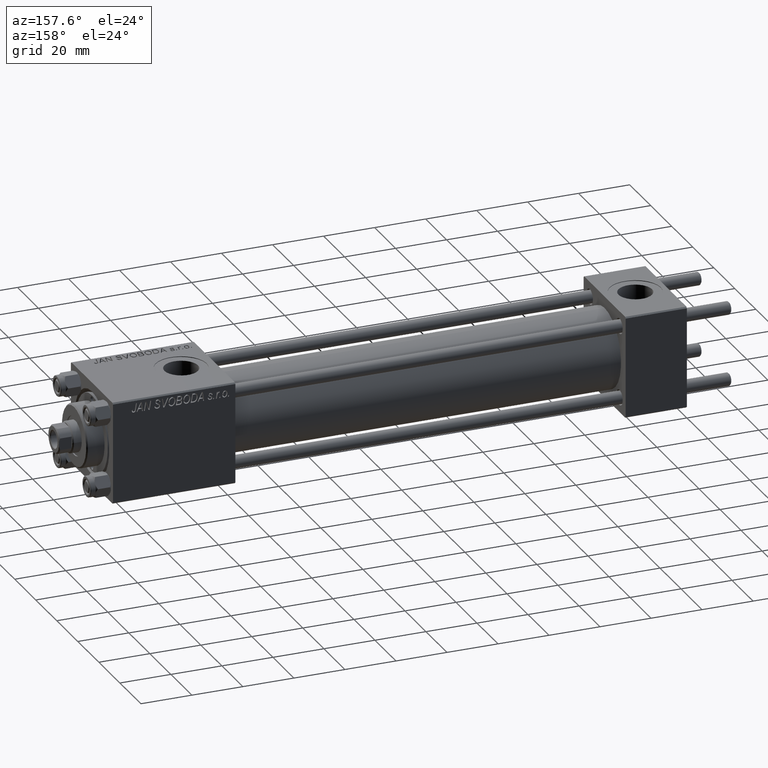
[diagram: clean part render]
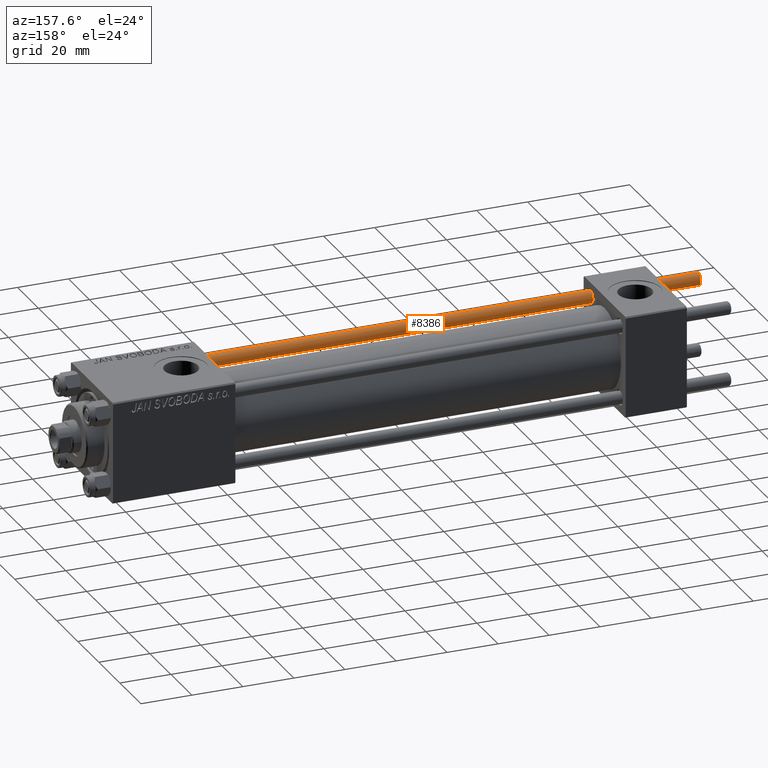
[diagram: same view with one face highlighted and labeled with its STEP entity id]
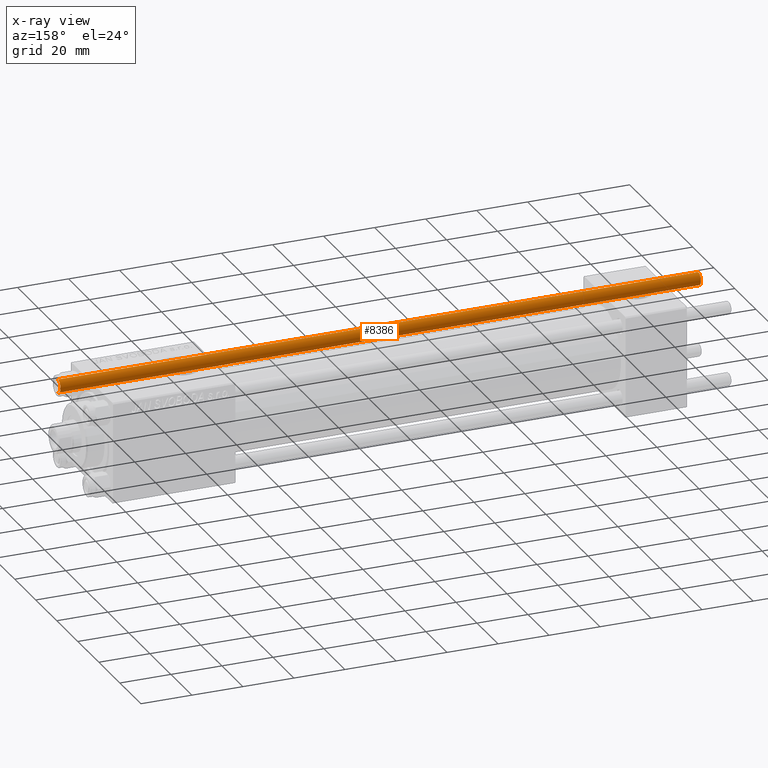
[diagram: x-ray of the same camera — body ghosted, the highlighted face saturated]
A machine part, auxiliary view. The second image highlights one B-rep face of the part: STEP entity #8386.
The next image is the same camera in x-ray: the body ghosted, the highlighted face saturated — about 0% of this face is hidden behind the body in this view.
In plain terms, the highlighted cylindrical surface (edge-blend (fillet) strip) has radius 2.5 mm, axis along (1, -0, 0).
Its self-contained STEP definition (entity closure, byte-faithful):
#1679 = VERTEX_POINT ( 'NONE', #21710 ) ;
#2681 = VERTEX_POINT ( 'NONE', #17995 ) ;
#2816 = VERTEX_POINT ( 'NONE', #22513 ) ;
#8004 = DIRECTION ( 'NONE',  ( 0.000000000000000000, 0.000000000000000000, -1.000000000000000000 ) ) ;
#8386 = ADVANCED_FACE ( 'NONE', ( #27118 ), #23844, .T. ) ;
#9774 = VECTOR ( 'NONE', #37578, 1000.000000000000000 ) ;
#9916 = VERTEX_POINT ( 'NONE', #24308 ) ;
#11194 = AXIS2_PLACEMENT_3D ( 'NONE', #42514, #43024, #16030 ) ;
#11543 = CARTESIAN_POINT ( 'NONE',  ( 0.000000000000000000, 0.000000000000000000, 251.5000000000000000 ) ) ;
#12187 = AXIS2_PLACEMENT_3D ( 'NONE', #32795, #40372, #28261 ) ;
#14670 = DIRECTION ( 'NONE',  ( -0.000000000000000000, -0.000000000000000000, -1.000000000000000000 ) ) ;
#14889 = EDGE_CURVE ( 'NONE', #2681, #1679, #41352, .T. ) ;
#16030 = DIRECTION ( 'NONE',  ( -1.000000000000000000, 0.000000000000000000, 0.000000000000000000 ) ) ;
#17995 = CARTESIAN_POINT ( 'NONE',  ( -2.500000000000000000, 0.000000000000000000, 251.5000000000000000 ) ) ;
#18946 = ORIENTED_EDGE ( 'NONE', *, *, #30635, .T. ) ;
#19250 = ORIENTED_EDGE ( 'NONE', *, *, #43643, .F. ) ;
#21710 = CARTESIAN_POINT ( 'NONE',  ( -2.500000000000000000, 0.000000000000000000, 0.5000000000000004441 ) ) ;
#22513 = CARTESIAN_POINT ( 'NONE',  ( 2.500000000000000000, 3.061616997868383141E-16, 0.5000000000000004441 ) ) ;
#23844 = CYLINDRICAL_SURFACE ( 'NONE', #11194, 2.500000000000000000 ) ;
#24308 = CARTESIAN_POINT ( 'NONE',  ( 2.500000000000000000, 3.061616997868383141E-16, 251.5000000000000000 ) ) ;
#25451 = EDGE_CURVE ( 'NONE', #1679, #2816, #29120, .T. ) ;
#27034 = VECTOR ( 'NONE', #14670, 1000.000000000000000 ) ;
#27118 = FACE_OUTER_BOUND ( 'NONE', #35898, .T. ) ;
#28261 = DIRECTION ( 'NONE',  ( 1.000000000000000000, 0.000000000000000000, 0.000000000000000000 ) ) ;
#29120 = CIRCLE ( 'NONE', #12187, 2.500000000000000000 ) ;
#30542 = ORIENTED_EDGE ( 'NONE', *, *, #14889, .T. ) ;
#30635 = EDGE_CURVE ( 'NONE', #9916, #2681, #42864, .T. ) ;
#30757 = AXIS2_PLACEMENT_3D ( 'NONE', #11543, #8004, #35769 ) ;
#32795 = CARTESIAN_POINT ( 'NONE',  ( 0.000000000000000000, 0.000000000000000000, 0.5000000000000004441 ) ) ;
#35769 = DIRECTION ( 'NONE',  ( 1.000000000000000000, 0.000000000000000000, 0.000000000000000000 ) ) ;
#35849 = ORIENTED_EDGE ( 'NONE', *, *, #25451, .T. ) ;
#35898 = EDGE_LOOP ( 'NONE', ( #19250, #18946, #30542, #35849 ) ) ;
#37578 = DIRECTION ( 'NONE',  ( -0.000000000000000000, -0.000000000000000000, -1.000000000000000000 ) ) ;
#40372 = DIRECTION ( 'NONE',  ( -0.000000000000000000, -0.000000000000000000, 1.000000000000000000 ) ) ;
#41352 = LINE ( 'NONE', #49666, #9774 ) ;
#41641 = LINE ( 'NONE', #44938, #27034 ) ;
#42514 = CARTESIAN_POINT ( 'NONE',  ( 0.000000000000000000, 0.000000000000000000, 252.0000000000000000 ) ) ;
#42864 = CIRCLE ( 'NONE', #30757, 2.500000000000000000 ) ;
#43024 = DIRECTION ( 'NONE',  ( -0.000000000000000000, -0.000000000000000000, -1.000000000000000000 ) ) ;
#43643 = EDGE_CURVE ( 'NONE', #9916, #2816, #41641, .T. ) ;
#44938 = CARTESIAN_POINT ( 'NONE',  ( 2.500000000000000000, 3.061616997868383141E-16, 252.0000000000000000 ) ) ;
#49666 = CARTESIAN_POINT ( 'NONE',  ( -2.500000000000000000, 0.000000000000000000, 252.0000000000000000 ) ) ;